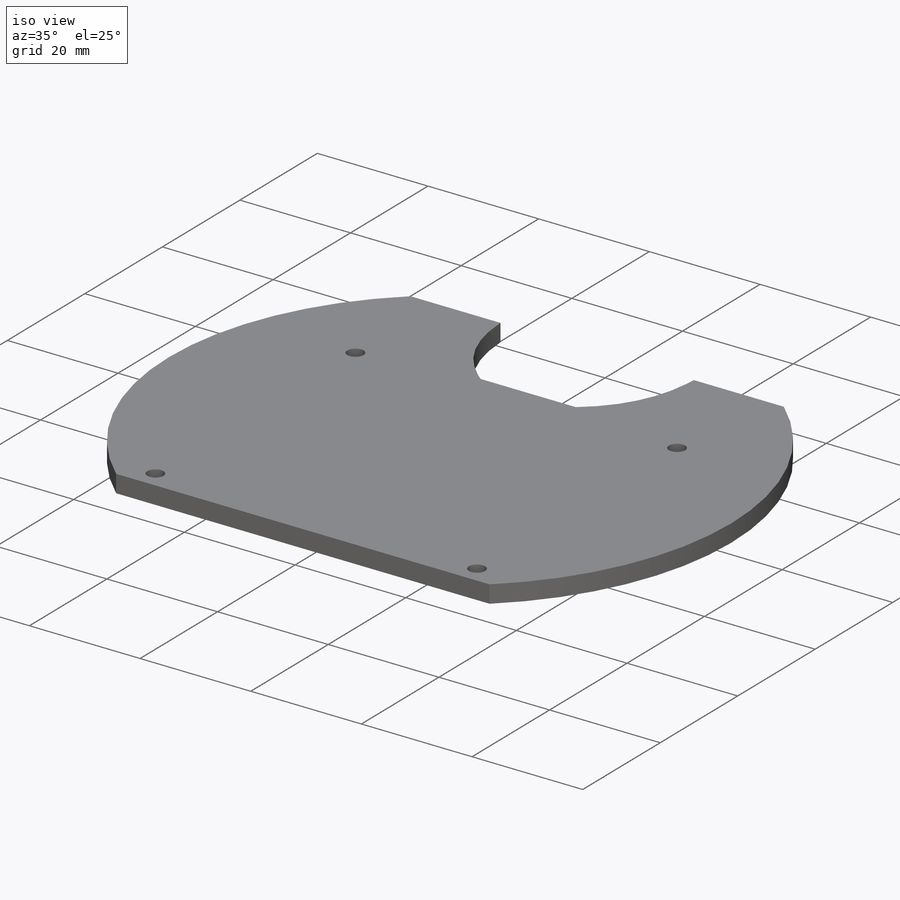
[diagram: iso view]
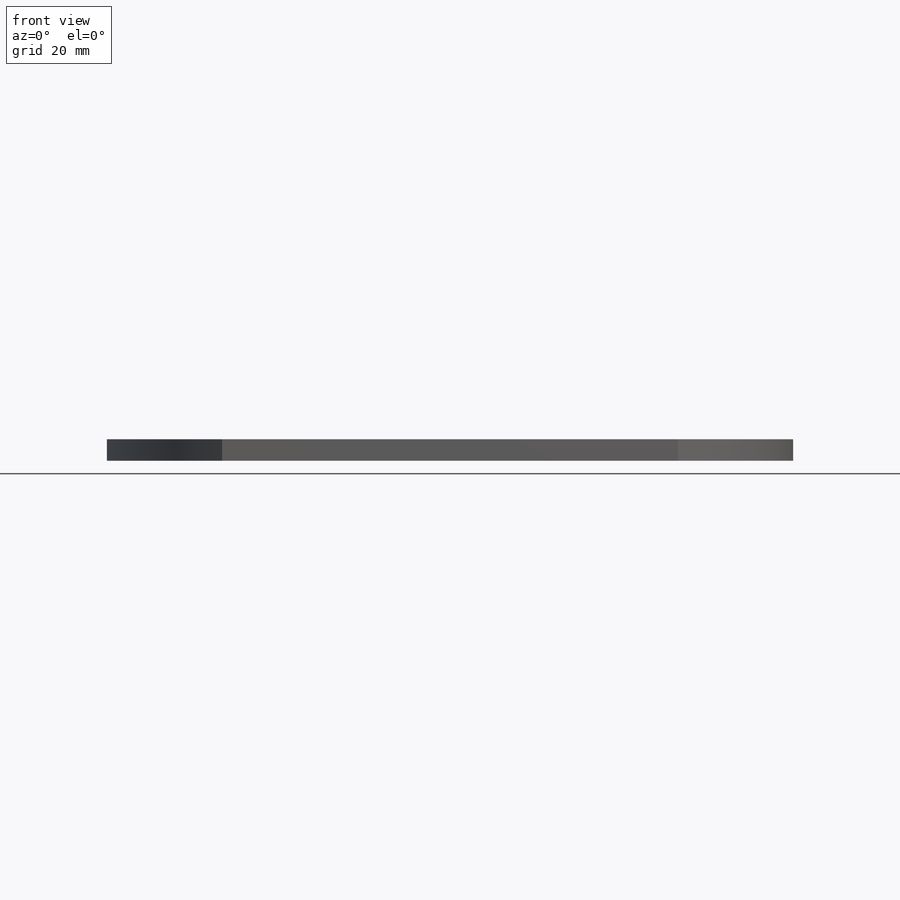
[diagram: front view]
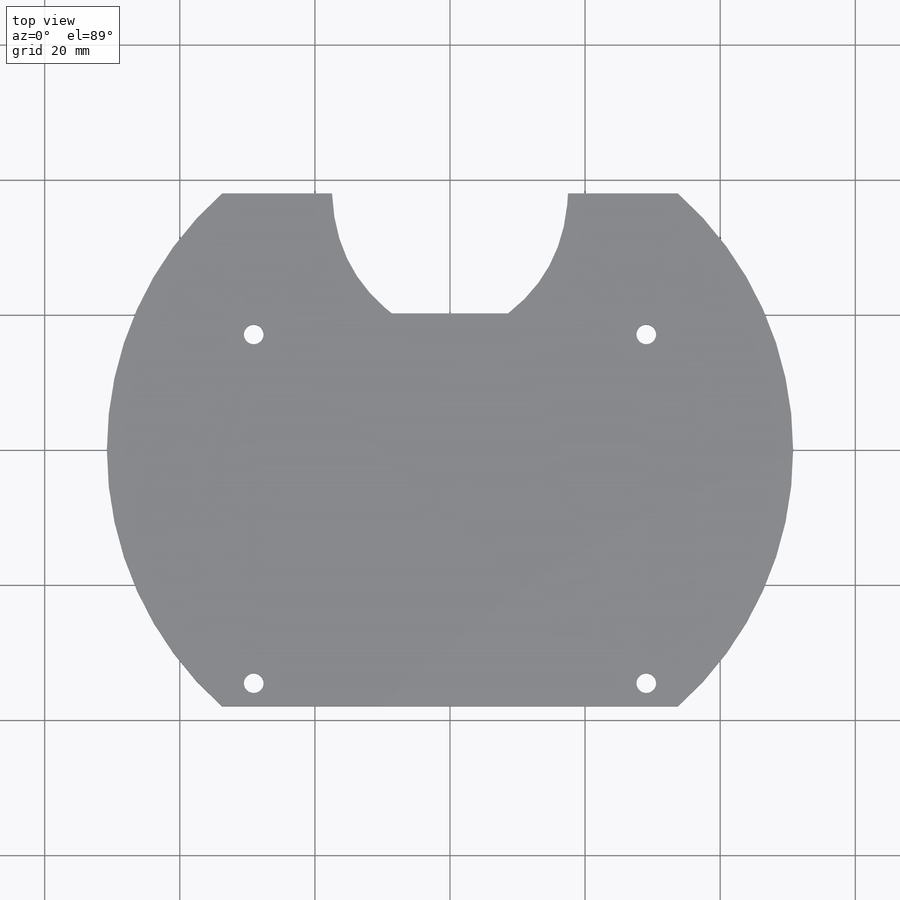
[diagram: top view]
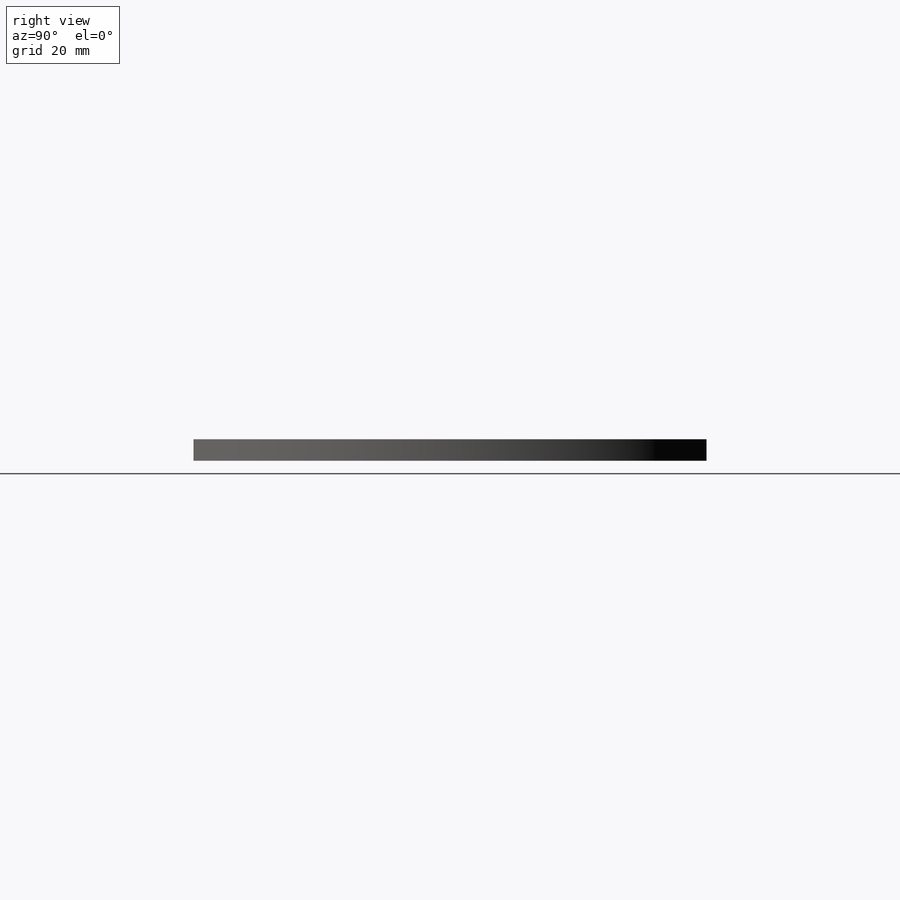
[diagram: right view]
SOLIDWORKS PART (.sldprt)
format: sldprt  version: not decoded by parser v0  size: 204,288 bytes
history: native  units: mm
features: sketch x7, cut_extrude x3, material x1, extrude x1 (+12 scaffold rows collapsed)
feature tree (24):
  scaffold x12  (default folders/planes/origin — collapsed)
  material  "Material <not specified>"
  sketch  "Sketch1"  dims[D1=~49.431587mm]
  extrude  "Boss-Extrude1"  Depth=3.175mm
  sketch  "Sketch2"  dims[c1.D1=~37.97808mm c1.D2=25.4mm c1.D3=17.78mm c2.D1=19.304mm c2.D2=19.304mm c2.D4=25.4mm c2.D5=0.0mm c2.D6=15.9512mm c2.D7=5.08mm c2.D8=0.0mm c3.D6=~37.97808mm]
  cut_extrude  "Cut-Extrude1"  Depth=3.175mm
  sketch  "Sketch4"
  sketch  "Sketch5"
  sketch  "Sketch6"
  cut_extrude  "Cut-Extrude2"  Depth=3.175mm
  sketch  "Sketch7"
  sketch  "Sketch8"
  cut_extrude  "Cut-Extrude4"  Depth=3.175mm
decode coverage: 6 of 11 modeling features carry decoded parameters
note: ~ marks probable driven/reference dimensions
note: suppression state not decoded; provenance and decode notes live in map.json
